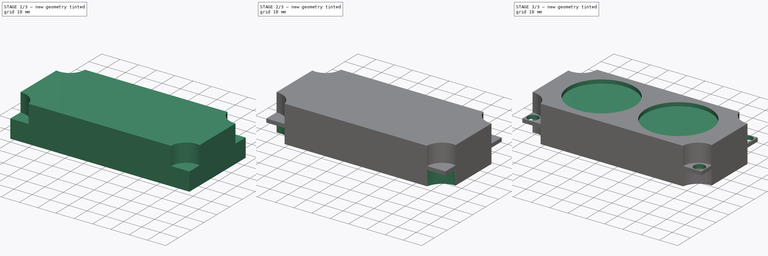
[diagram: build sequence overview — one tinted view per stage of 3, left to right]
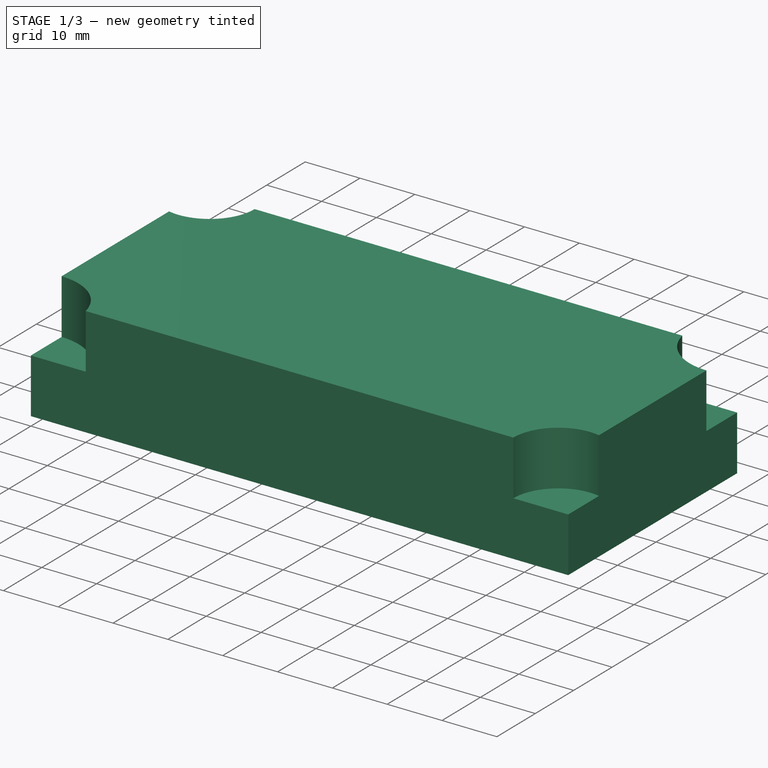
[diagram: stage 1 of 3 — iso view after this stage's code; geometry added in this stage tinted green]
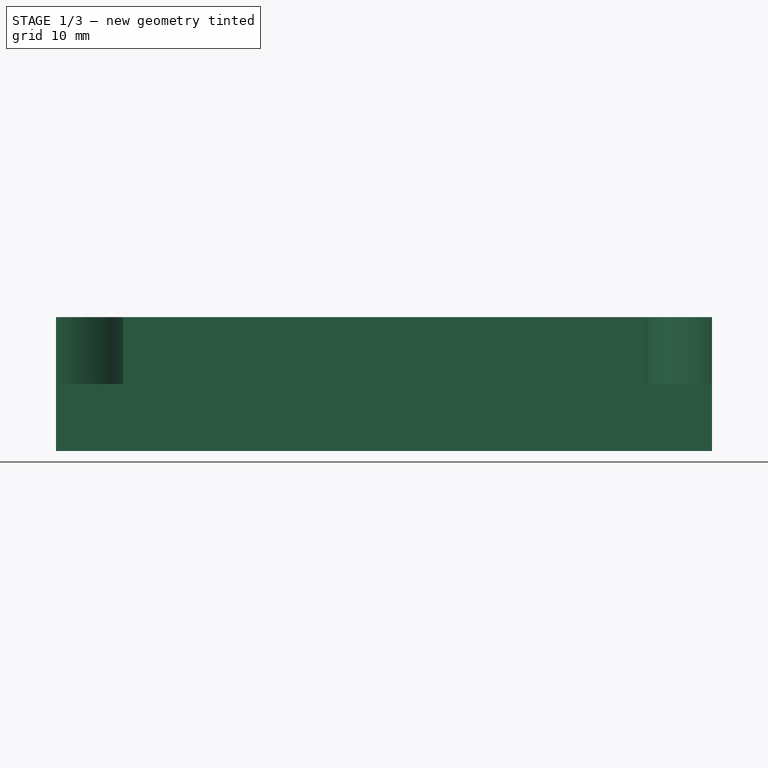
[diagram: stage 1 of 3 — front view after this stage's code; geometry added in this stage tinted green]
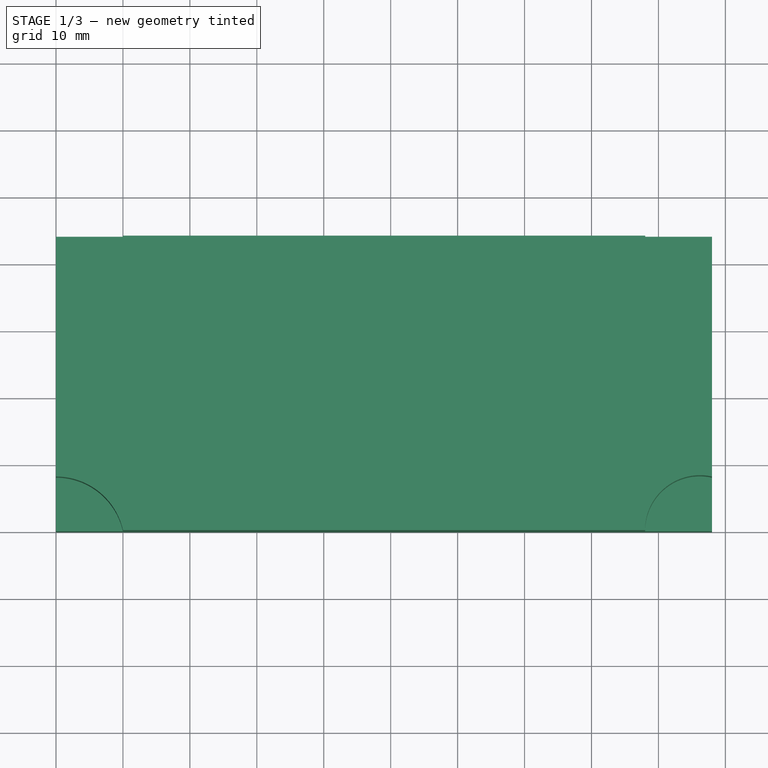
[diagram: stage 1 of 3 — top view after this stage's code; geometry added in this stage tinted green]
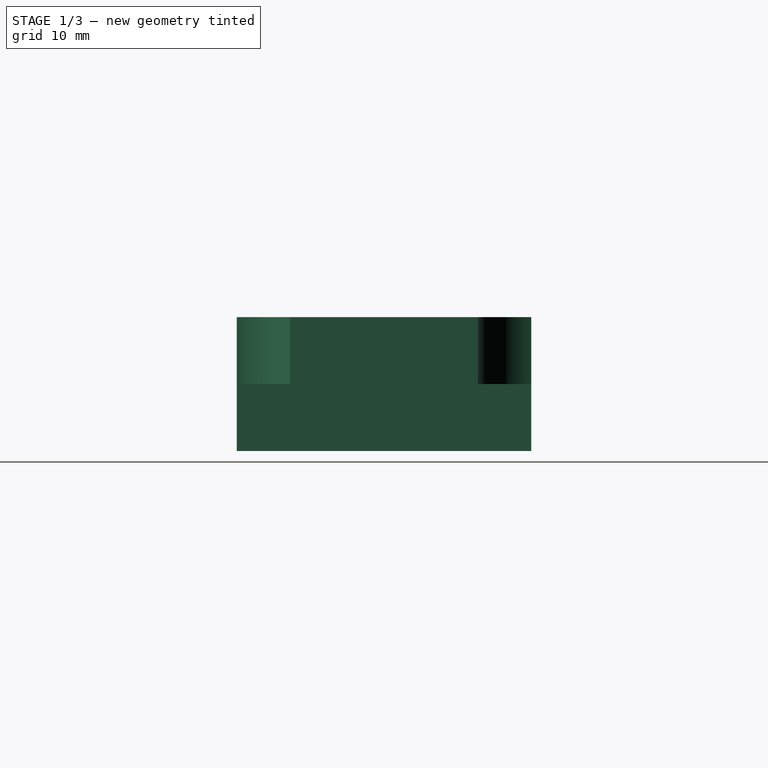
[diagram: stage 1 of 3 — right view after this stage's code; geometry added in this stage tinted green]
FCSTD DOCUMENT  (FreeCAD 0.19R24366 (Git))
Label: speakers
License: All rights reserved
LicenseURL: http://en.wikipedia.org/wiki/All_rights_reserved
objects: Sketcher::SketchObject×5, PartDesign::Pocket×3, PartDesign::Pad×1, PartDesign::Hole×1, PartDesign::Body×1
note: 16 computed .brp shape members not serialized (recipe doc carries the construction recipe); baked Part::Feature solids carry a one-line shape summary decoded from their .brp

FEATURE [Sketcher::SketchObject] Sketch
  FullyConstrained = true
  MapMode = 5
  sketch-geometry (4):
    g0: LineSegment StartX=0 StartY=0 StartZ=0 EndX=98 EndY=0 EndZ=0
    g1: LineSegment StartX=98 StartY=0 StartZ=0 EndX=98 EndY=44 EndZ=0
    g2: LineSegment StartX=98 StartY=44 StartZ=0 EndX=0 EndY=44 EndZ=0
    g3: LineSegment StartX=0 StartY=44 StartZ=0 EndX=0 EndY=0 EndZ=0
  constraints (11):
    c: Coincident(g0,g1)
    c: Coincident(g1,g2)
    c: Coincident(g2,g3)
    c: Coincident(g3,g0)
    c: Horizontal(g0)
    c: Horizontal(g2)
    c: Vertical(g1)
    c: Vertical(g3)
    c: Coincident(g0,g-1)
    c: DistanceX(g2,g2) = 98
    c: DistanceY(g1,g1) = 44
FEATURE [PartDesign::Pad] Pad
  Direction = (1,1,1)
  Length = 20
  Length2 = 100
  Profile = -> Sketch
  Type = 0
FEATURE [Sketcher::SketchObject] Sketch001
  FullyConstrained = true
  MapMode = 5
  Placement = pos=(0,0,20) rot=(0,0,1;0rad)
  Support = -> [Pad]
  sketch-geometry (12):
    g0: LineSegment StartX=0 StartY=44 StartZ=0 EndX=-2.2e-15 EndY=36 EndZ=0
    g1: LineSegment StartX=0 StartY=44 StartZ=0 EndX=10 EndY=44 EndZ=0
    g2: LineSegment StartX=0 StartY=0 StartZ=0 EndX=6e-16 EndY=8 EndZ=0
    g3: LineSegment StartX=0 StartY=0 StartZ=0 EndX=10 EndY=0 EndZ=0
    g4: ArcOfCircle CenterX=0 CenterY=-2.25 CenterZ=0 NormalX=0 NormalY=0 NormalZ=1 AngleXU=0 Radius=10.25 StartAngle=0.221314 EndAngle=1.5708
    g5: ArcOfCircle CenterX=1.8 CenterY=44 CenterZ=0 NormalX=0 NormalY=0 NormalZ=1 AngleXU=0 Radius=8.2 StartAngle=4.49107 EndAngle=6.28319
    g6: LineSegment StartX=98 StartY=36 StartZ=0 EndX=98 EndY=44 EndZ=0
    g7: LineSegment StartX=98 StartY=44 StartZ=0 EndX=88 EndY=44 EndZ=0
    g8: ArcOfCircle CenterX=98 CenterY=46.25 CenterZ=0 NormalX=0 NormalY=0 NormalZ=1 AngleXU=0 Radius=10.25 StartAngle=3.36291 EndAngle=4.71239
    g9: LineSegment StartX=88 StartY=1e-15 StartZ=0 EndX=98 EndY=0 EndZ=0
    g10: LineSegment StartX=98 StartY=0 StartZ=0 EndX=98 EndY=8 EndZ=0
    g11: ArcOfCircle CenterX=96.2 CenterY=0 CenterZ=0 NormalX=0 NormalY=0 NormalZ=1 AngleXU=0 Radius=8.2 StartAngle=1.34948 EndAngle=3.14159
  constraints (40):
    c: PointOnObject(g0,g-2)
    c: PointOnObject(g0,g-2)
    c: Coincident(g1,g0)
    c: Coincident(g2,g-1)
    c: PointOnObject(g2,g-2)
    c: Coincident(g3,g2)
    c: PointOnObject(g3,g-1)
    c: Coincident(g4,g3)
    c: Coincident(g4,g2)
    c: DistanceX(g2,g3) = 10
    c: DistanceY(g2,g2) = 8
    c: DistanceY(g2,g0) = 28
    c: DistanceY(g0,g0) = 8
    c: DistanceX(g0,g1) = 10
    c: DistanceX(g2,g4) = 0
    c: Coincident(g5,g0)
    c: Coincident(g5,g1)
    c: Horizontal(g1,g0)
    c: DistanceY(g5,g0) = 0
    c: Vertical(g6)
    c: PointOnObject(g7,g6)
    c: Horizontal(g7)
    c: Horizontal(g6,g7)
    c: Horizontal(g7,g1)
    c: DistanceX(g7,g6) = 10
    c: DistanceX(g1,g7) = 78
    c: DistanceY(g6,g6) = 8
    c: Coincident(g8,g7)
    c: Coincident(g8,g6)
    c: DistanceX(g6,g8) = 0
    c: PointOnObject(g9,g-1)
    c: PointOnObject(g9,g-1)
    c: Coincident(g10,g9)
    c: Vertical(g10)
    c: DistanceY(g9,g10) = 8
    c: DistanceX(g9,g9) = 10
    c: DistanceX(g3,g9) = 78
    c: Coincident(g11,g9)
    c: Coincident(g11,g10)
    c: DistanceY(g9,g11) = 0
FEATURE [PartDesign::Pocket] Pocket
  BaseFeature = -> Pad
  Length = 10
  Length2 = 100
  Profile = -> Sketch001
  Type = 0
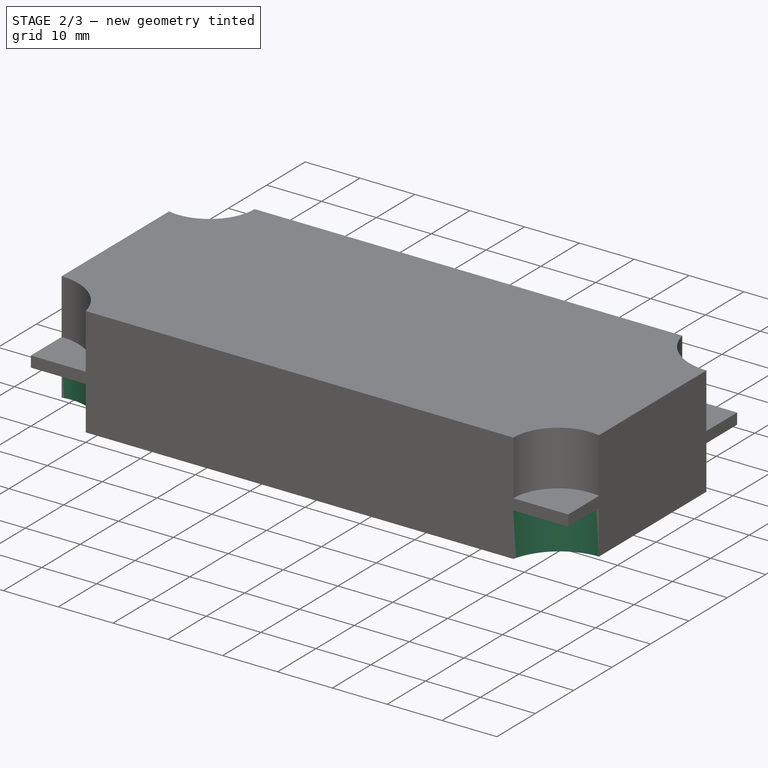
[diagram: stage 2 of 3 — iso view after this stage's code; geometry added in this stage tinted green]
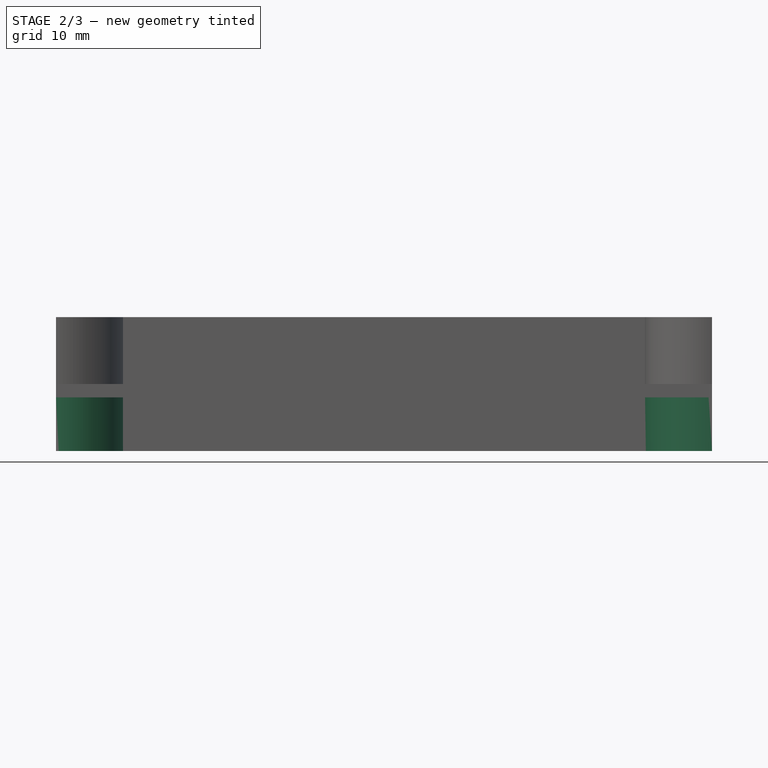
[diagram: stage 2 of 3 — front view after this stage's code; geometry added in this stage tinted green]
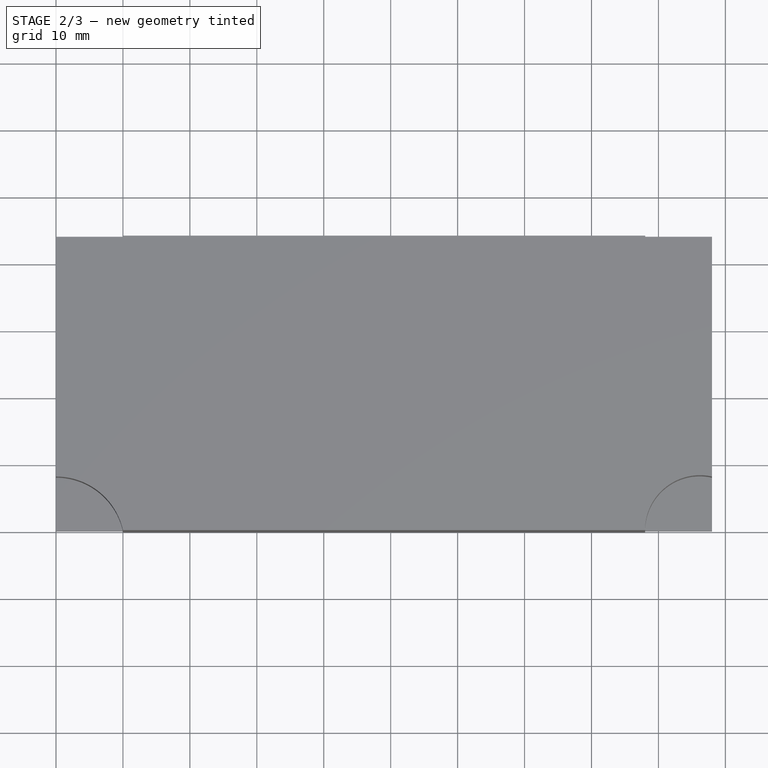
[diagram: stage 2 of 3 — top view after this stage's code; geometry added in this stage tinted green]
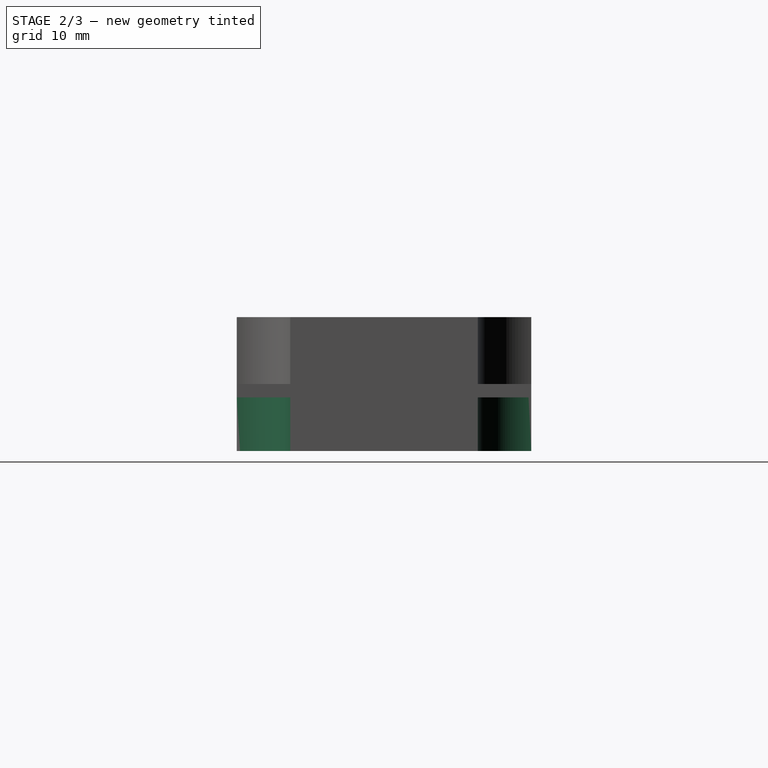
[diagram: stage 2 of 3 — right view after this stage's code; geometry added in this stage tinted green]
FEATURE [Sketcher::SketchObject] Sketch002
  FullyConstrained = true
  MapMode = 5
  Placement = pos=(0,0,0) rot=(1,0,0;3.14159rad)
  Support = -> [Pocket]
  sketch-geometry (12):
    g0: LineSegment StartX=10 StartY=-44 StartZ=0 EndX=0 EndY=-44 EndZ=0
    g1: LineSegment StartX=6e-16 StartY=-36 StartZ=0 EndX=0 EndY=-44 EndZ=0
    g2: ArcOfCircle CenterX=0 CenterY=-46.25 CenterZ=0 NormalX=0 NormalY=0 NormalZ=1 AngleXU=0 Radius=10.25 StartAngle=0.221314 EndAngle=1.5708
    g3: LineSegment StartX=0 StartY=0 StartZ=0 EndX=2.4e-15 EndY=-8 EndZ=0
    g4: LineSegment StartX=0 StartY=0 StartZ=0 EndX=10 EndY=-2e-15 EndZ=0
    g5: ArcOfCircle CenterX=1.8 CenterY=0 CenterZ=0 NormalX=0 NormalY=0 NormalZ=1 AngleXU=0 Radius=8.2 StartAngle=4.49107 EndAngle=6.28319
    g6: LineSegment StartX=98 StartY=0 StartZ=0 EndX=88 EndY=1.8e-15 EndZ=0
    g7: LineSegment StartX=98 StartY=0 StartZ=0 EndX=98 EndY=-8 EndZ=0
    g8: ArcOfCircle CenterX=98 CenterY=2.25 CenterZ=0 NormalX=0 NormalY=0 NormalZ=1 AngleXU=0 Radius=10.25 StartAngle=3.36291 EndAngle=4.71239
    g9: LineSegment StartX=88 StartY=-44 StartZ=0 EndX=98 EndY=-44 EndZ=0
    g10: LineSegment StartX=98 StartY=-44 StartZ=0 EndX=98 EndY=-36 EndZ=0
    g11: ArcOfCircle CenterX=96.2 CenterY=-44 CenterZ=0 NormalX=0 NormalY=0 NormalZ=1 AngleXU=0 Radius=8.2 StartAngle=1.34948 EndAngle=3.14159
  constraints (39):
    c: PointOnObject(g0,g-2)
    c: Horizontal(g0)
    c: PointOnObject(g1,g-2)
    c: Coincident(g1,g0)
    c: Coincident(g2,g1)
    c: Coincident(g2,g0)
    c: DistanceX(g0,g2) = 0
    c: DistanceX(g0,g0) = 10
    c: DistanceY(g0,g1) = 8
    c: DistanceY(g1,g-1) = 36
    c: Coincident(g3,g-1)
    c: PointOnObject(g3,g-2)
    c: Coincident(g4,g3)
    c: PointOnObject(g4,g-1)
    c: DistanceX(g3,g4) = 10
    c: DistanceY(g3,g3) = 8
    c: Coincident(g5,g3)
    c: Coincident(g5,g4)
    c: DistanceY(g5,g3) = 0
    c: PointOnObject(g6,g-1)
    c: PointOnObject(g6,g-1)
    c: Coincident(g7,g6)
    c: Vertical(g7)
    c: DistanceX(g6,g6) = 10
    c: DistanceX(g4,g6) = 78
    c: DistanceY(g7,g6) = 8
    c: Coincident(g8,g6)
    c: Coincident(g8,g7)
    c: DistanceX(g8,g6) = 0
    c: Horizontal(g9)
    c: Coincident(g10,g9)
    c: Vertical(g10)
    c: DistanceX(g0,g9) = 78
    c: DistanceX(g9,g9) = 10
    c: DistanceY(g9,g10) = 8
    c: DistanceY(g10,g7) = 28
    c: Coincident(g11,g10)
    c: Coincident(g11,g9)
    c: DistanceY(g11,g9) = 0
FEATURE [PartDesign::Pocket] Pocket001
  BaseFeature = -> Pocket
  Length = 8
  Length2 = 100
  Profile = -> Sketch002
  Type = 0
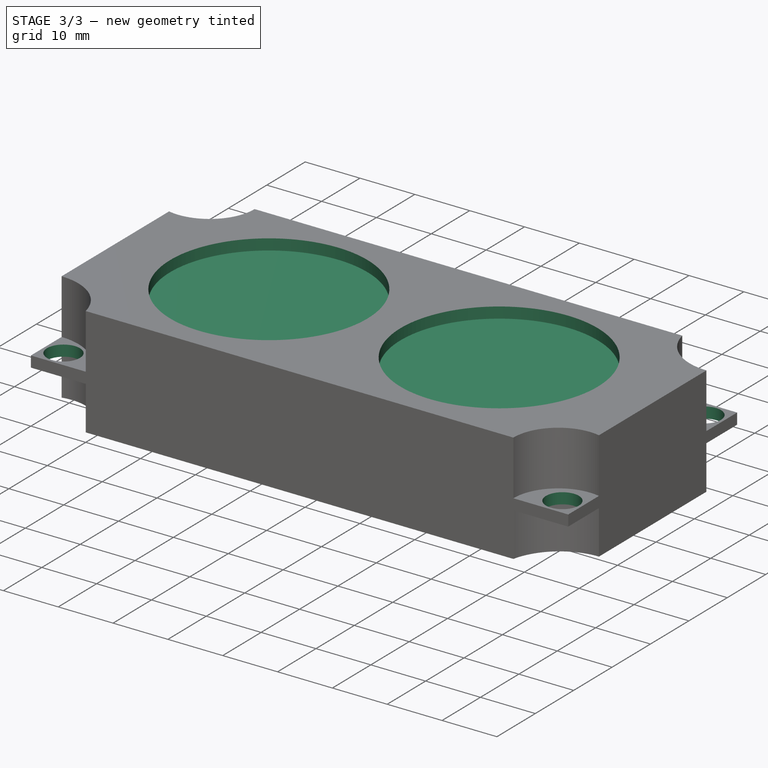
[diagram: stage 3 of 3 — iso view after this stage's code; geometry added in this stage tinted green]
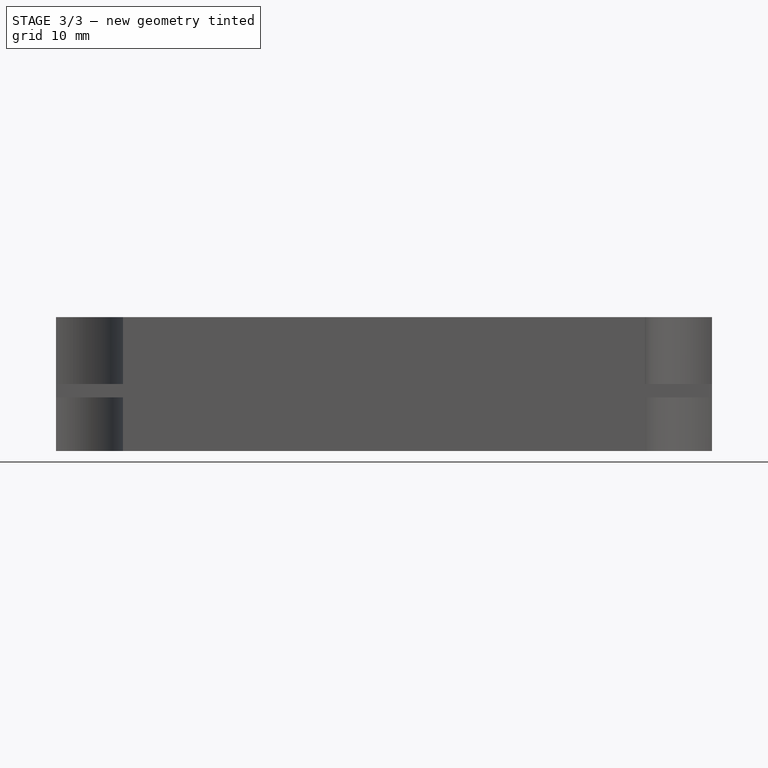
[diagram: stage 3 of 3 — front view after this stage's code; geometry added in this stage tinted green]
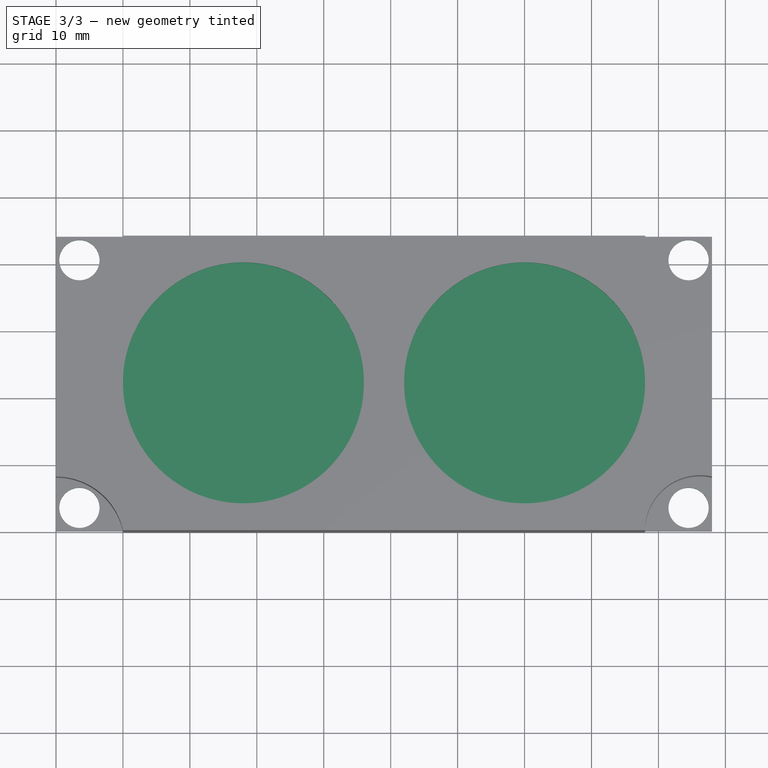
[diagram: stage 3 of 3 — top view after this stage's code; geometry added in this stage tinted green]
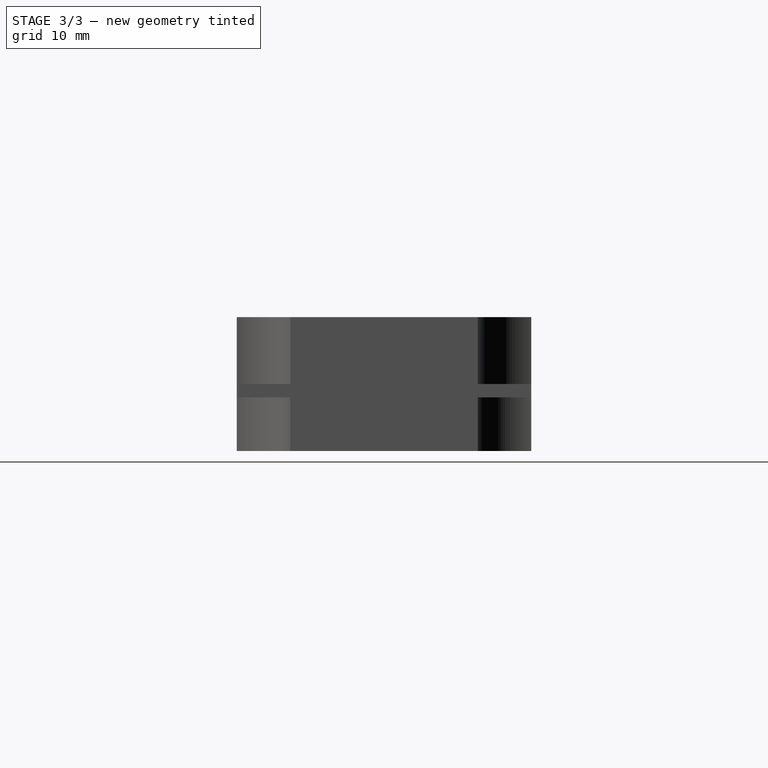
[diagram: stage 3 of 3 — right view after this stage's code; geometry added in this stage tinted green]
FEATURE [Sketcher::SketchObject] Sketch003
  FullyConstrained = true
  MapMode = 5
  Placement = pos=(0,0,10) rot=(0,0,1;0rad)
  Support = -> [Pocket001]
  sketch-geometry (4):
    g0: Circle CenterX=3.5 CenterY=3.5 CenterZ=0 NormalX=0 NormalY=0 NormalZ=1 AngleXU=0 Radius=3
    g1: Circle CenterX=3.5 CenterY=40.5 CenterZ=0 NormalX=0 NormalY=0 NormalZ=1 AngleXU=0 Radius=3
    g2: Circle CenterX=94.5 CenterY=40.5 CenterZ=0 NormalX=0 NormalY=0 NormalZ=1 AngleXU=0 Radius=3
    g3: Circle CenterX=94.5 CenterY=3.5 CenterZ=0 NormalX=0 NormalY=0 NormalZ=1 AngleXU=0 Radius=3
  constraints (12):
    c: Diameter(g0) = 6
    c: DistanceY(g-1,g0) = 3.5
    c: DistanceX(g-1,g0) = 3.5
    c: Diameter(g1) = 6
    c: DistanceX(g-1,g1) = 3.5
    c: DistanceY(g-1,g1) = 40.5
    c: Diameter(g2) = 6
    c: Diameter(g3) = 6
    c: DistanceY(g1,g2) = 0
    c: DistanceX(g1,g2) = 91
    c: DistanceX(g0,g3) = 91
    c: DistanceY(g3,g0) = 0
FEATURE [PartDesign::Hole] Hole
  BaseFeature = -> Pocket001
  Depth = 25
  DepthType = 0
  Diameter = 6
  DrillForDepth = false
  DrillPoint = 1
  DrillPointAngle = 118
  HoleCutCountersinkAngle = 90
  HoleCutCustomValues = false
  HoleCutDepth = 0
  HoleCutDiameter = 6.1
  HoleCutType = 0
  ModelActualThread = false
  Profile = -> Sketch003
  Tapered = false
  TaperedAngle = 90
  ThreadAngle = 0
  ThreadClass = 0
  ThreadCutOffInner = 0
  ThreadCutOffOuter = 0
  ThreadDirection = 0
  ThreadFit = 0
  ThreadPitch = 0
  ThreadSize = 0
  ThreadType = 0
  Threaded = false
FEATURE [Sketcher::SketchObject] Sketch004
  FullyConstrained = true
  MapMode = 5
  Placement = pos=(0,0,20) rot=(0,0,1;0rad)
  Support = -> [Hole]
  sketch-geometry (2):
    g0: Circle CenterX=28 CenterY=22 CenterZ=0 NormalX=0 NormalY=0 NormalZ=1 AngleXU=0 Radius=18
    g1: Circle CenterX=70 CenterY=22 CenterZ=0 NormalX=0 NormalY=0 NormalZ=1 AngleXU=0 Radius=18
  constraints (6):
    c: Diameter(g0) = 36
    c: DistanceX(g-1,g0) = 28
    c: DistanceY(g-1,g0) = 22
    c: Equal(g0,g1) = 36
    c: DistanceY(g0,g1) = 0
    c: DistanceX(g-1,g1) = 70
FEATURE [PartDesign::Pocket] Pocket002
  BaseFeature = -> Hole
  Length = 2
  Length2 = 100
  Profile = -> Sketch004
  Type = 0
FEATURE [PartDesign::Body] Body
  Group = -> [Sketch,Pad,Sketch001,Pocket,Sketch002,Pocket001,Sketch003,Hole,Sketch004,Pocket002]
  Origin = -> Origin
  Tip = -> Pocket002
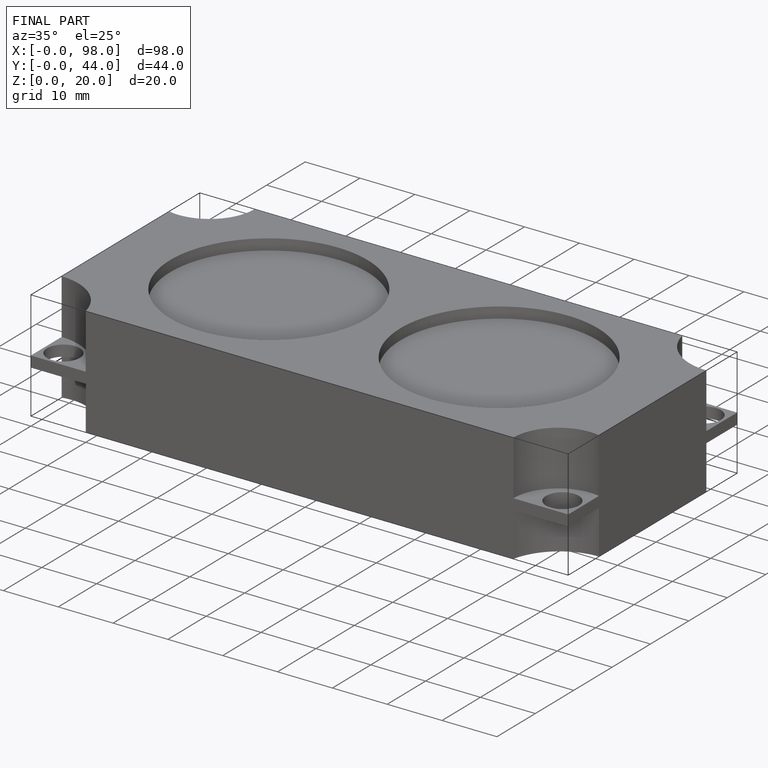
[diagram: finished part — iso view with bounding-box wireframe]
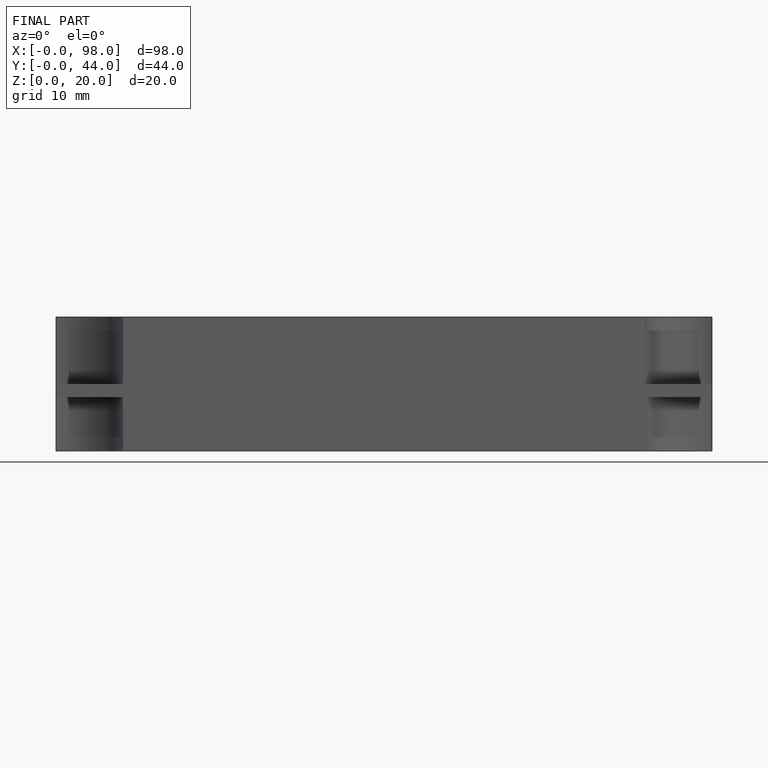
[diagram: finished part — front view with bounding-box wireframe]
